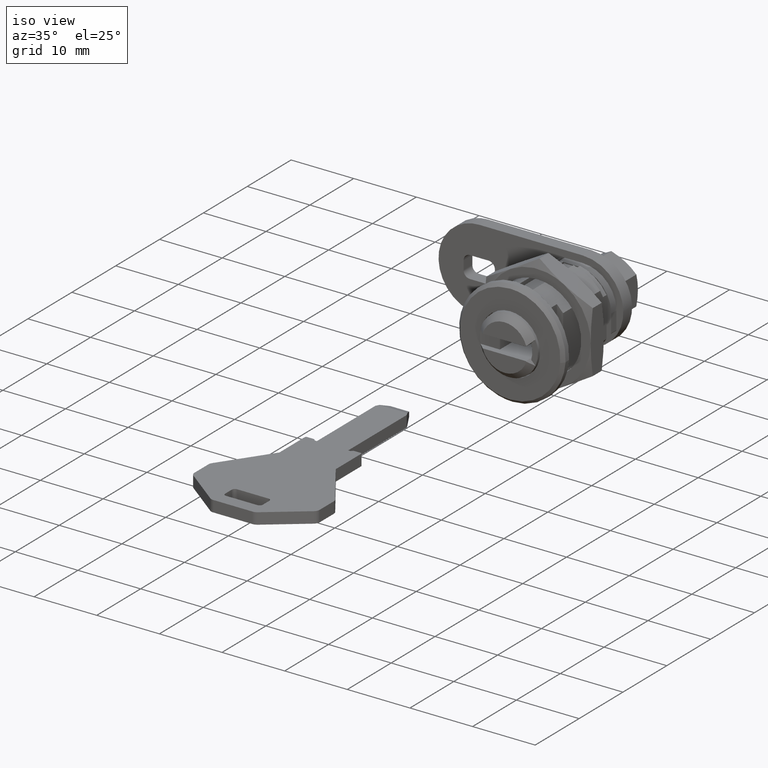
[diagram: clean part render]
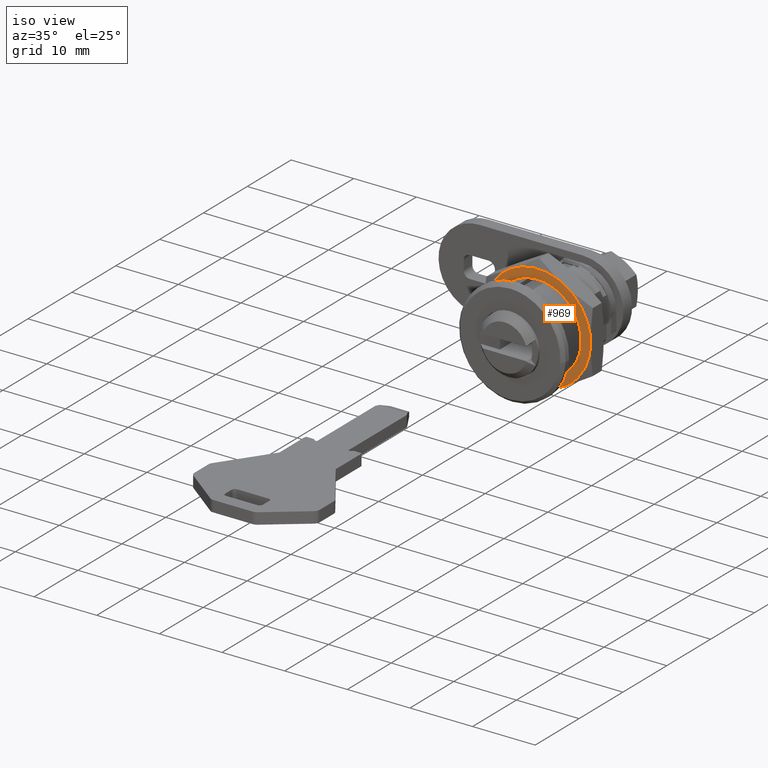
[diagram: same view with one face highlighted and labeled with its STEP entity id]
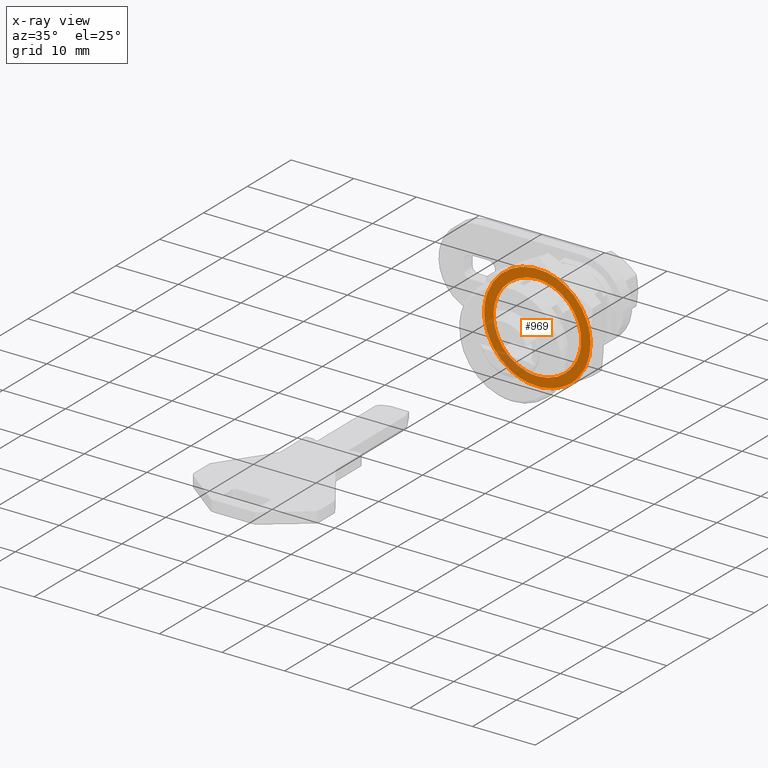
[diagram: x-ray of the same camera — body ghosted, the highlighted face saturated]
A machine part, iso view. The second image highlights one B-rep face of the part: STEP entity #969.
The next image is the same camera in x-ray: the body ghosted, the highlighted face saturated — about 13% of this face is hidden behind the body in this view.
In plain terms, the highlighted face is a freeform B-spline surface patch.
Its self-contained STEP definition (entity closure, byte-faithful):
#85=CARTESIAN_POINT('',(6.200000000000000,-6.951066684541063,-0.826239642485714));
#86=VERTEX_POINT('',#85);
#92=CARTESIAN_POINT('',(6.200000000000000,-7.105427E-015,7.000000000150365));
#93=VERTEX_POINT('',#92);
#94=CARTESIAN_POINT('',(6.200000000000000,-6.951066684541063,-0.826239642485714));
#95=CARTESIAN_POINT('',(6.200000000000001,-7.000000000000007,-0.414568837452184));
#96=CARTESIAN_POINT('',(6.200000000000000,-7.000000000000007,1.503651E-010));
#97=CARTESIAN_POINT('',(6.199999999999999,-7.000000000000005,7.000000000150367));
#98=CARTESIAN_POINT('',(6.200000000000000,-7.105427E-015,7.000000000150365));
#106=(BOUNDED_CURVE()B_SPLINE_CURVE(2,(#94,#95,#96,#97,#98),.UNSPECIFIED.,.F.,.U.)B_SPLINE_CURVE_WITH_KNOTS((3,2,3),(0.229562473513759,0.250000000000000,0.500000000000000),.UNSPECIFIED.)CURVE()GEOMETRIC_REPRESENTATION_ITEM()RATIONAL_B_SPLINE_CURVE((0.956026754184191,0.976055948331439,1.0,0.707106781186547,1.0))REPRESENTATION_ITEM(''));
#107=EDGE_CURVE('',#86,#93,#106,.T.);
#109=CARTESIAN_POINT('',(6.200000000000001,6.986943588949915,0.427339776945789));
#110=VERTEX_POINT('',#109);
#111=CARTESIAN_POINT('',(6.200000000000000,-7.105427E-015,7.000000000150365));
#112=CARTESIAN_POINT('',(6.200000000000000,6.584942468242773,7.000000000150366));
#113=CARTESIAN_POINT('',(6.200000000000001,6.986943588949915,0.427339776945789));
#121=(BOUNDED_CURVE()B_SPLINE_CURVE(2,(#111,#112,#113),.UNSPECIFIED.,.F.,.U.)B_SPLINE_CURVE_WITH_KNOTS((3,3),(0.500000000000000,0.739332962239429),.UNSPECIFIED.)CURVE()GEOMETRIC_REPRESENTATION_ITEM()RATIONAL_B_SPLINE_CURVE((1.0,0.719603993286140,0.976072041667760))REPRESENTATION_ITEM(''));
#122=EDGE_CURVE('',#93,#110,#121,.T.);
#196=CARTESIAN_POINT('',(6.200000000000000,-7.105427E-015,-6.999999999849635));
#197=VERTEX_POINT('',#196);
#198=CARTESIAN_POINT('',(6.200000000000001,6.986943588949915,0.427339776945789));
#199=CARTESIAN_POINT('',(6.200000000000000,6.999999999999993,0.213869343292057));
#200=CARTESIAN_POINT('',(6.200000000000000,6.999999999999993,1.503651E-010));
#201=CARTESIAN_POINT('',(6.199999999999999,6.999999999999993,-6.999999999849636));
#202=CARTESIAN_POINT('',(6.200000000000000,-7.105427E-015,-6.999999999849635));
#210=(BOUNDED_CURVE()B_SPLINE_CURVE(2,(#198,#199,#200,#201,#202),.UNSPECIFIED.,.F.,.U.)B_SPLINE_CURVE_WITH_KNOTS((3,2,3),(0.739332962239428,0.750000000000000,1.0),.UNSPECIFIED.)CURVE()GEOMETRIC_REPRESENTATION_ITEM()RATIONAL_B_SPLINE_CURVE((0.976072041667758,0.987502787900406,1.0,0.707106781186547,1.0))REPRESENTATION_ITEM(''));
#211=EDGE_CURVE('',#110,#197,#210,.T.);
#213=CARTESIAN_POINT('',(6.200000000000000,-7.105427E-015,-6.999999999849635));
#214=CARTESIAN_POINT('',(6.200000000000000,-6.217221681589742,-6.999999999849636));
#215=CARTESIAN_POINT('',(6.200000000000000,-6.951066684541063,-0.826239642485714));
#223=(BOUNDED_CURVE()B_SPLINE_CURVE(2,(#213,#214,#215),.UNSPECIFIED.,.F.,.U.)B_SPLINE_CURVE_WITH_KNOTS((3,3),(0.0,0.229562473513759),.UNSPECIFIED.)CURVE()GEOMETRIC_REPRESENTATION_ITEM()RATIONAL_B_SPLINE_CURVE((1.0,0.731050832855109,0.956026754184191))REPRESENTATION_ITEM(''));
#224=EDGE_CURVE('',#197,#86,#223,.T.);
#246=CARTESIAN_POINT('',(6.199999999999880,4.249999999999431,-7.361215932164459));
#247=VERTEX_POINT('',#246);
#259=CARTESIAN_POINT('',(6.199999999999880,8.499999999999879,-9.314351E-014));
#260=VERTEX_POINT('',#259);
#261=CARTESIAN_POINT('',(6.199999999999880,4.249999999999433,-7.361215932164465));
#262=CARTESIAN_POINT('',(6.199999999999880,8.499999999996890,-4.907477288109264));
#263=CARTESIAN_POINT('',(6.199999999999880,8.499999999999879,-9.314351E-014));
#271=(BOUNDED_CURVE()B_SPLINE_CURVE(2,(#261,#262,#263),.UNSPECIFIED.,.F.,.U.)CURVE()GEOMETRIC_REPRESENTATION_ITEM()QUASI_UNIFORM_CURVE()RATIONAL_B_SPLINE_CURVE((1.0,0.866025403784472,1.0))REPRESENTATION_ITEM(''));
#272=EDGE_CURVE('',#247,#260,#271,.T.);
#304=CARTESIAN_POINT('',(6.199999999999880,4.249999999994715,7.361215932167190));
#305=VERTEX_POINT('',#304);
#335=CARTESIAN_POINT('',(6.199999999999880,4.249999999994715,7.361215932167190));
#336=CARTESIAN_POINT('',(6.199999999999881,8.499999999996890,4.907477288112896));
#337=CARTESIAN_POINT('',(6.199999999999880,8.499999999999879,-9.314351E-014));
#345=(BOUNDED_CURVE()B_SPLINE_CURVE(2,(#335,#336,#337),.UNSPECIFIED.,.F.,.U.)CURVE()GEOMETRIC_REPRESENTATION_ITEM()QUASI_UNIFORM_CURVE()RATIONAL_B_SPLINE_CURVE((1.0,0.866025403784312,1.0))REPRESENTATION_ITEM(''));
#346=EDGE_CURVE('',#305,#260,#345,.T.);
#365=CARTESIAN_POINT('',(6.199999999999880,-4.249999999994776,7.361215932167150));
#366=VERTEX_POINT('',#365);
#391=CARTESIAN_POINT('',(6.199999999999880,4.249999999994715,7.361215932167190));
#392=CARTESIAN_POINT('',(6.199999999999880,-3.903128E-014,9.814954576217200));
#393=CARTESIAN_POINT('',(6.199999999999880,-4.249999999994776,7.361215932167154));
#401=(BOUNDED_CURVE()B_SPLINE_CURVE(2,(#391,#392,#393),.UNSPECIFIED.,.F.,.U.)CURVE()GEOMETRIC_REPRESENTATION_ITEM()QUASI_UNIFORM_CURVE()RATIONAL_B_SPLINE_CURVE((1.0,0.866025403784690,1.0))REPRESENTATION_ITEM(''));
#402=EDGE_CURVE('',#305,#366,#401,.T.);
#421=CARTESIAN_POINT('',(6.199999999999880,-8.499999999996890,1.036597E-013));
#422=VERTEX_POINT('',#421);
#452=CARTESIAN_POINT('',(6.199999999999880,-4.249999999994776,7.361215932167154));
#453=CARTESIAN_POINT('',(6.199999999999879,-8.499999999996890,4.907477288112849));
#454=CARTESIAN_POINT('',(6.199999999999880,-8.499999999996890,1.036597E-013));
#462=(BOUNDED_CURVE()B_SPLINE_CURVE(2,(#452,#453,#454),.UNSPECIFIED.,.F.,.U.)CURVE()GEOMETRIC_REPRESENTATION_ITEM()QUASI_UNIFORM_CURVE()RATIONAL_B_SPLINE_CURVE((1.0,0.866025403784314,1.0))REPRESENTATION_ITEM(''));
#463=EDGE_CURVE('',#366,#422,#462,.T.);
#497=CARTESIAN_POINT('',(6.199999999999880,-4.249999999999511,-7.361215932164419));
#498=VERTEX_POINT('',#497);
#499=CARTESIAN_POINT('',(6.199999999999880,-8.499999999996890,1.036597E-013));
#500=CARTESIAN_POINT('',(6.199999999999880,-8.499999999996890,-4.907477288109199));
#501=CARTESIAN_POINT('',(6.199999999999880,-4.249999999999514,-7.361215932164417));
#509=(BOUNDED_CURVE()B_SPLINE_CURVE(2,(#499,#500,#501),.UNSPECIFIED.,.F.,.U.)CURVE()GEOMETRIC_REPRESENTATION_ITEM()QUASI_UNIFORM_CURVE()RATIONAL_B_SPLINE_CURVE((1.0,0.866025403784475,1.0))REPRESENTATION_ITEM(''));
#510=EDGE_CURVE('',#422,#498,#509,.T.);
#553=CARTESIAN_POINT('',(6.199999999999880,-4.249999999999514,-7.361215932164417));
#554=CARTESIAN_POINT('',(6.199999999999880,-5.377643E-014,-9.814954576220838));
#555=CARTESIAN_POINT('',(6.199999999999880,4.249999999999433,-7.361215932164465));
#563=(BOUNDED_CURVE()B_SPLINE_CURVE(2,(#553,#554,#555),.UNSPECIFIED.,.F.,.U.)CURVE()GEOMETRIC_REPRESENTATION_ITEM()QUASI_UNIFORM_CURVE()RATIONAL_B_SPLINE_CURVE((1.0,0.866025403784369,1.0))REPRESENTATION_ITEM(''));
#564=EDGE_CURVE('',#498,#247,#563,.T.);
#950=CARTESIAN_POINT('',(6.199999999999880,9.349149967050419,9.349149967047248));
#951=CARTESIAN_POINT('',(6.199999999999880,-9.349150423022962,9.349149967047248));
#952=CARTESIAN_POINT('',(6.199999999999880,9.349149967050419,-9.349150423022774));
#953=CARTESIAN_POINT('',(6.199999999999880,-9.349150423022962,-9.349150423022774));
#954=B_SPLINE_SURFACE_WITH_KNOTS('',1,1,((#950,#952),(#951,#953)),.UNSPECIFIED.,.F.,.F.,.U.,(2,2),(2,2),(0.0,18.698300390073381),(0.0,18.698300390070020),.UNSPECIFIED.);
#955=ORIENTED_EDGE('',*,*,#272,.F.);
#956=ORIENTED_EDGE('',*,*,#564,.F.);
#957=ORIENTED_EDGE('',*,*,#510,.F.);
#958=ORIENTED_EDGE('',*,*,#463,.F.);
#959=ORIENTED_EDGE('',*,*,#402,.F.);
#960=ORIENTED_EDGE('',*,*,#346,.T.);
#961=EDGE_LOOP('',(#955,#956,#957,#958,#959,#960));
#962=FACE_OUTER_BOUND('',#961,.T.);
#963=ORIENTED_EDGE('',*,*,#122,.F.);
#964=ORIENTED_EDGE('',*,*,#107,.F.);
#965=ORIENTED_EDGE('',*,*,#224,.F.);
#966=ORIENTED_EDGE('',*,*,#211,.F.);
#967=EDGE_LOOP('',(#963,#964,#965,#966));
#968=FACE_BOUND('',#967,.T.);
#969=ADVANCED_FACE('',(#962,#968),#954,.F.);